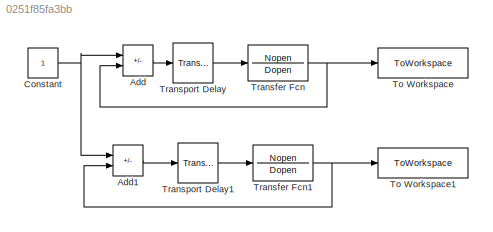
MODEL slx_0251f85fa3bb
KIND model
CONFIG AbsTol = auto
CONFIG EnableMultiTasking = off
CONFIG FixedStep = auto
CONFIG MaxStep = auto
CONFIG MinStep = auto
CONFIG RelTol = 1e-3
CONFIG SampleTimeConstraint = Unconstrained
CONFIG SolverName = VariableStepAuto
CONFIG StartTime = 0.0
CONFIG StopTime = 10.0
BLOCK [Sum] Add
  IconShape = rectangular
  Inputs = +-
  Ports = [2, 1]
BLOCK [Sum] Add1
  IconShape = rectangular
  Inputs = +-
  Ports = [2, 1]
BLOCK [Constant] Constant
BLOCK [ToWorkspace] To Workspace
  FixptAsFi = on
  MaxDataPoints = inf
  Ports = [1]
  SampleTime = -1
  SaveFormat = Timeseries
  VariableName = y0
BLOCK [ToWorkspace] To Workspace1
  FixptAsFi = on
  MaxDataPoints = inf
  Ports = [1]
  SampleTime = -1
  SaveFormat = Timeseries
  VariableName = y1
BLOCK [TransferFcn] Transfer Fcn
  Denominator = Dopen
  Numerator = Nopen
BLOCK [TransferFcn] Transfer Fcn1
  Denominator = Dopen
  Numerator = Nopen
BLOCK [TransportDelay] Transport Delay
  DelayTime = t1
  Ports = [1, 1]
BLOCK [TransportDelay] Transport Delay1
  DelayTime = t2
  Ports = [1, 1]
LINE Add1:1 -> Transport Delay1:1
LINE Add:1 -> Transport Delay:1
NET Constant:1 -> Add1:1, Add:1
NET Transfer Fcn1:1 -> Add1:2, To Workspace1:1
NET Transfer Fcn:1 -> Add:2, To Workspace:1
LINE Transport Delay1:1 -> Transfer Fcn1:1
LINE Transport Delay:1 -> Transfer Fcn:1
note: NET lines group one-source signal fan-out (src -> all destinations, sorted); 1:1 wires keep LINE
